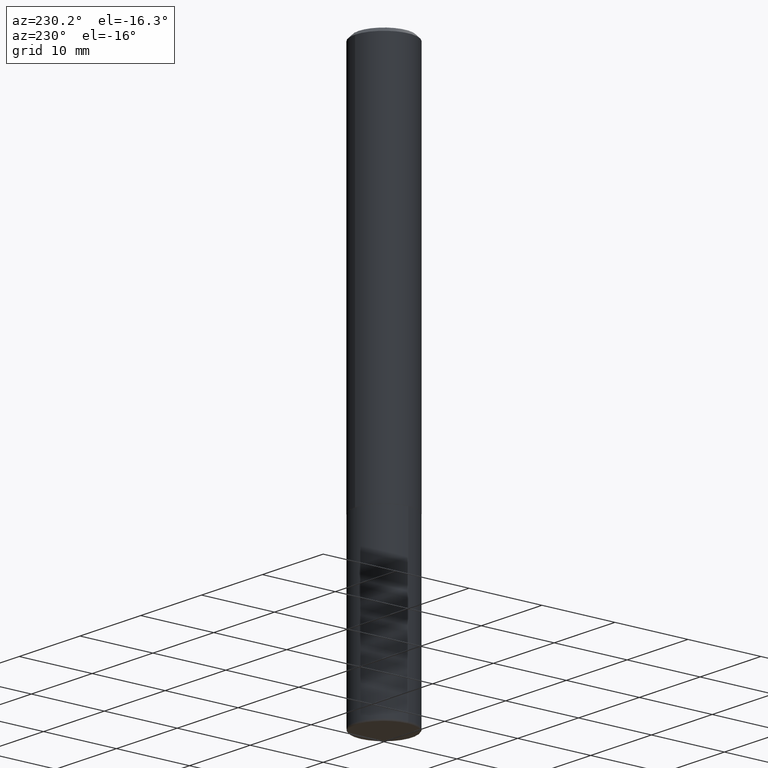
[diagram: clean part render]
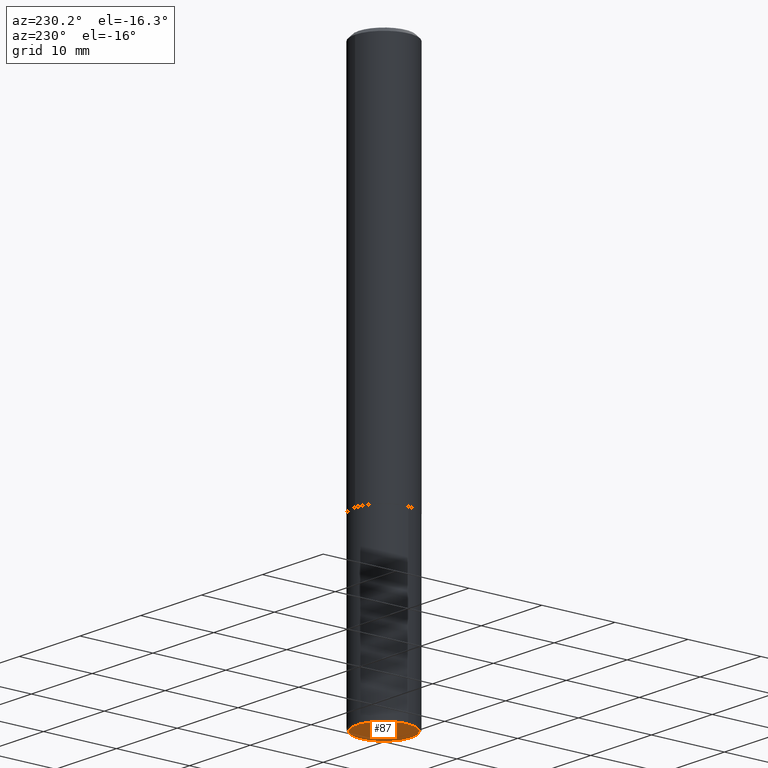
[diagram: same view with one face highlighted and labeled with its STEP entity id]
A machine part, auxiliary view. The second image highlights one B-rep face of the part: STEP entity #87.
In plain terms, the highlighted planar face has unit normal (0, -0, -1).
Its self-contained STEP definition (entity closure, byte-faithful):
#4 = EDGE_CURVE ( 'NONE', #327, #115, #227, .T. ) ;
#44 = ORIENTED_EDGE ( 'NONE', *, *, #235, .F. ) ;
#45 = AXIS2_PLACEMENT_3D ( 'NONE', #116, #383, #349 ) ;
#87 = ADVANCED_FACE ( 'NONE', ( #379 ), #409, .T. ) ;
#113 = DIRECTION ( 'NONE',  ( -2.445468806185136597E-29, 3.491481338843145583E-15, 1.000000000000000000 ) ) ;
#115 = VERTEX_POINT ( 'NONE', #347 ) ;
#116 = CARTESIAN_POINT ( 'NONE',  ( 7.336406418555409790E-29, -1.047444401652943635E-14, -3.000000000000000444 ) ) ;
#117 = CARTESIAN_POINT ( 'NONE',  ( 7.336406418555409790E-29, -1.047444401652943635E-14, -3.000000000000000444 ) ) ;
#137 = ORIENTED_EDGE ( 'NONE', *, *, #4, .F. ) ;
#143 = CARTESIAN_POINT ( 'NONE',  ( 0.1462500000000000189, -1.149570230814105460E-14, -3.000000000000000444 ) ) ;
#181 = AXIS2_PLACEMENT_3D ( 'NONE', #117, #113, #404 ) ;
#222 = CARTESIAN_POINT ( 'NONE',  ( 7.336406418555409790E-29, -1.047444401652943635E-14, -3.000000000000000444 ) ) ;
#227 = CIRCLE ( 'NONE', #390, 0.1462500000000000189 ) ;
#235 = EDGE_CURVE ( 'NONE', #115, #327, #376, .T. ) ;
#256 = DIRECTION ( 'NONE',  ( 1.000000000000000000, -6.982962677686270655E-15, 0.000000000000000000 ) ) ;
#272 = EDGE_LOOP ( 'NONE', ( #137, #44 ) ) ;
#327 = VERTEX_POINT ( 'NONE', #143 ) ;
#347 = CARTESIAN_POINT ( 'NONE',  ( -0.1462500000000000189, -9.382290721998072185E-15, -3.000000000000000444 ) ) ;
#349 = DIRECTION ( 'NONE',  ( -1.000000000000000000, 6.982962677686265922E-15, -4.876176775795935793E-29 ) ) ;
#376 = CIRCLE ( 'NONE', #181, 0.1462500000000000189 ) ;
#379 = FACE_OUTER_BOUND ( 'NONE', #272, .T. ) ;
#383 = DIRECTION ( 'NONE',  ( 2.438088387897960049E-29, -3.491481338843145188E-15, -1.000000000000000000 ) ) ;
#390 = AXIS2_PLACEMENT_3D ( 'NONE', #222, #416, #256 ) ;
#404 = DIRECTION ( 'NONE',  ( 1.000000000000000000, -6.982962677686270655E-15, 0.000000000000000000 ) ) ;
#409 = PLANE ( 'NONE',  #45 ) ;
#416 = DIRECTION ( 'NONE',  ( -2.445468806185136597E-29, 3.491481338843145583E-15, 1.000000000000000000 ) ) ;